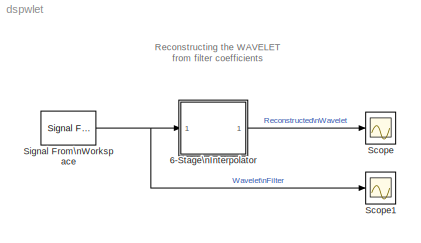
MODEL dspwlet
KIND model
CONFIG PreLoadFcn = load dspwlets;
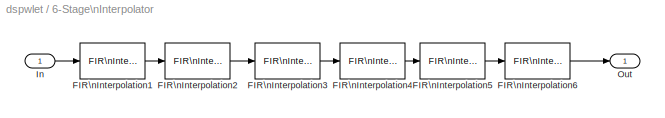
BLOCK [SubSystem] 6-Stage\nInterpolator
  MinAlgLoopOccurrences = off
  Ports = [1, 1]
  PropExecContextAcrossSSBoundary = on
  RTWSystemCode = Auto
  TreatAsAtomicUnit = off
BLOCK [Reference] 6-Stage\nInterpolator/FIR\nInterpolation1  REF=dspmlti3/FIR\nInterpolation
  DialogController = dspDDGCreate
  DialogControllerArgs = DataTag0
  L = 2
  Ports = [1, 1]
  SourceBlock = dspmlti3/FIR\nInterpolation
  SourceType = FIR Interpolation
  accumFracLength = 30
  accumMode = Inherit via internal rule
  accumWordLength = 32
  additionalParams = off
  allowOverrides = on
  firstCoeffFracLength = 15
  firstCoeffMode = Same word length as input
  firstCoeffWordLength = 16
  framing = Maintain input frame size
  h = lor./2
  outputBufInitCond = 0
  outputFracLength = 15
  outputMode = Same as accumulator
  outputWordLength = 16
  overflowMode = off
  prodOutputFracLength = 30
  prodOutputMode = Inherit via internal rule
  prodOutputWordLength = 32
  roundingMode = Floor
BLOCK [Reference] 6-Stage\nInterpolator/FIR\nInterpolation2  REF=dspmlti3/FIR\nInterpolation
  DialogController = dspDDGCreate
  DialogControllerArgs = DataTag1
  L = 2
  Ports = [1, 1]
  SourceBlock = dspmlti3/FIR\nInterpolation
  SourceType = FIR Interpolation
  accumFracLength = 30
  accumMode = Inherit via internal rule
  accumWordLength = 32
  additionalParams = off
  allowOverrides = on
  firstCoeffFracLength = 15
  firstCoeffMode = Same word length as input
  firstCoeffWordLength = 16
  framing = Maintain input frame size
  h = lor./2
  outputBufInitCond = 0
  outputFracLength = 15
  outputMode = Same as accumulator
  outputWordLength = 16
  overflowMode = off
  prodOutputFracLength = 30
  prodOutputMode = Inherit via internal rule
  prodOutputWordLength = 32
  roundingMode = Floor
BLOCK [Reference] 6-Stage\nInterpolator/FIR\nInterpolation3  REF=dspmlti3/FIR\nInterpolation
  DialogController = dspDDGCreate
  DialogControllerArgs = DataTag2
  L = 2
  Ports = [1, 1]
  SourceBlock = dspmlti3/FIR\nInterpolation
  SourceType = FIR Interpolation
  accumFracLength = 30
  accumMode = Inherit via internal rule
  accumWordLength = 32
  additionalParams = off
  allowOverrides = on
  firstCoeffFracLength = 15
  firstCoeffMode = Same word length as input
  firstCoeffWordLength = 16
  framing = Maintain input frame size
  h = lor./2
  outputBufInitCond = 0
  outputFracLength = 15
  outputMode = Same as accumulator
  outputWordLength = 16
  overflowMode = off
  prodOutputFracLength = 30
  prodOutputMode = Inherit via internal rule
  prodOutputWordLength = 32
  roundingMode = Floor
BLOCK [Reference] 6-Stage\nInterpolator/FIR\nInterpolation4  REF=dspmlti3/FIR\nInterpolation
  DialogController = dspDDGCreate
  DialogControllerArgs = DataTag3
  L = 2
  Ports = [1, 1]
  SourceBlock = dspmlti3/FIR\nInterpolation
  SourceType = FIR Interpolation
  accumFracLength = 30
  accumMode = Inherit via internal rule
  accumWordLength = 32
  additionalParams = off
  allowOverrides = on
  firstCoeffFracLength = 15
  firstCoeffMode = Same word length as input
  firstCoeffWordLength = 16
  framing = Maintain input frame size
  h = lor./2
  outputBufInitCond = 0
  outputFracLength = 15
  outputMode = Same as accumulator
  outputWordLength = 16
  overflowMode = off
  prodOutputFracLength = 30
  prodOutputMode = Inherit via internal rule
  prodOutputWordLength = 32
  roundingMode = Floor
BLOCK [Reference] 6-Stage\nInterpolator/FIR\nInterpolation5  REF=dspmlti3/FIR\nInterpolation
  DialogController = dspDDGCreate
  DialogControllerArgs = DataTag4
  L = 2
  Ports = [1, 1]
  SourceBlock = dspmlti3/FIR\nInterpolation
  SourceType = FIR Interpolation
  accumFracLength = 30
  accumMode = Inherit via internal rule
  accumWordLength = 32
  additionalParams = off
  allowOverrides = on
  firstCoeffFracLength = 15
  firstCoeffMode = Same word length as input
  firstCoeffWordLength = 16
  framing = Maintain input frame size
  h = lor./2
  outputBufInitCond = 0
  outputFracLength = 15
  outputMode = Same as accumulator
  outputWordLength = 16
  overflowMode = off
  prodOutputFracLength = 30
  prodOutputMode = Inherit via internal rule
  prodOutputWordLength = 32
  roundingMode = Floor
BLOCK [Reference] 6-Stage\nInterpolator/FIR\nInterpolation6  REF=dspmlti3/FIR\nInterpolation
  DialogController = dspDDGCreate
  DialogControllerArgs = DataTag5
  L = 2
  Ports = [1, 1]
  SourceBlock = dspmlti3/FIR\nInterpolation
  SourceType = FIR Interpolation
  accumFracLength = 30
  accumMode = Inherit via internal rule
  accumWordLength = 32
  additionalParams = off
  allowOverrides = on
  firstCoeffFracLength = 15
  firstCoeffMode = Same word length as input
  firstCoeffWordLength = 16
  framing = Maintain input frame size
  h = lor./2
  outputBufInitCond = 0
  outputFracLength = 15
  outputMode = Same as accumulator
  outputWordLength = 16
  overflowMode = off
  prodOutputFracLength = 30
  prodOutputMode = Inherit via internal rule
  prodOutputWordLength = 32
  roundingMode = Floor
BLOCK [Inport] 6-Stage\nInterpolator/In
  IconDisplay = Port number
  LatchInput = off
BLOCK [Outport] 6-Stage\nInterpolator/Out
  IconDisplay = Port number
BLOCK [Scope] Scope
  DataFormat = Array
  NumInputPorts = 1
  Ports = [1]
  TimeRange = 16
  YMax = 0.002
  YMin = -0.0015
BLOCK [Scope] Scope1
  DataFormat = Array
  NumInputPorts = 1
  Ports = [1]
  SaveName = ScopeData1
  TimeRange = 16
  YMax = 0.8
  YMin = -0.8
BLOCK [Reference] Signal From\nWorkspace  REF=dspsrcs4/Signal From\nWorkspace
  OutputAfterFinalValue = Setting to zero
  Ports = [0, 1]
  ShowPortLabels = on
  SourceBlock = dspsrcs4/Signal From\nWorkspace
  SourceType = Signal From Workspace
  Ts = ts
  X = hir
  nsamps = 1
ANNOTATION (root): Reconstructing the WAVELET\nfrom filter coefficients
LINE 6-Stage\nInterpolator/FIR\nInterpolation1:1 -> 6-Stage\nInterpolator/FIR\nInterpolation2:1
LINE 6-Stage\nInterpolator/FIR\nInterpolation2:1 -> 6-Stage\nInterpolator/FIR\nInterpolation3:1
LINE 6-Stage\nInterpolator/FIR\nInterpolation3:1 -> 6-Stage\nInterpolator/FIR\nInterpolation4:1
LINE 6-Stage\nInterpolator/FIR\nInterpolation4:1 -> 6-Stage\nInterpolator/FIR\nInterpolation5:1
LINE 6-Stage\nInterpolator/FIR\nInterpolation5:1 -> 6-Stage\nInterpolator/FIR\nInterpolation6:1
LINE 6-Stage\nInterpolator/FIR\nInterpolation6:1 -> 6-Stage\nInterpolator/Out:1
LINE 6-Stage\nInterpolator/In:1 -> 6-Stage\nInterpolator/FIR\nInterpolation1:1
LINE 6-Stage\nInterpolator:1 -> Scope:1
NET Signal From\nWorkspace:1 -> 6-Stage\nInterpolator:1, Scope1:1
note: NET lines group one-source signal fan-out (src -> all destinations, sorted); 1:1 wires keep LINE
